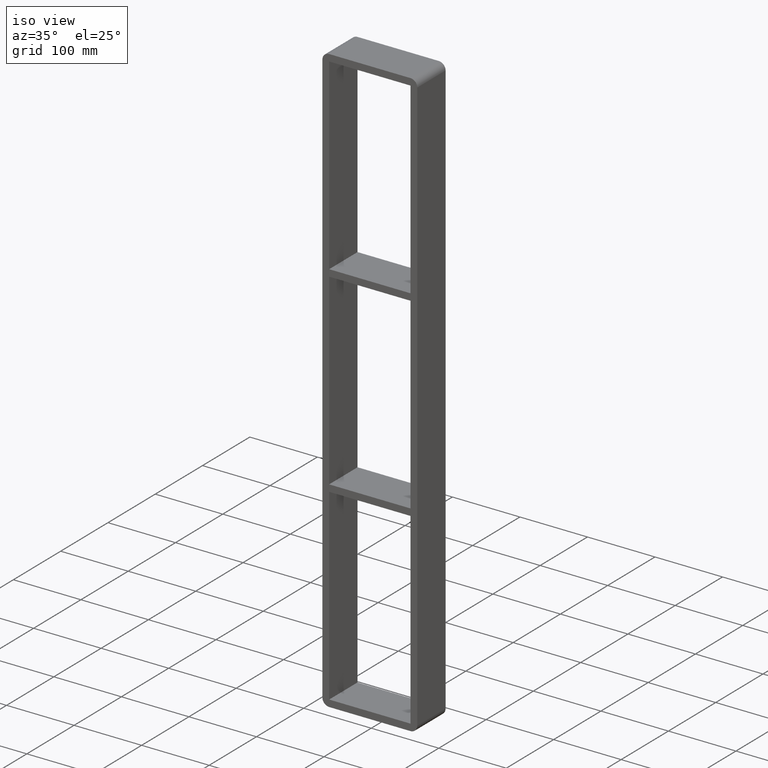
[diagram: clean part render]
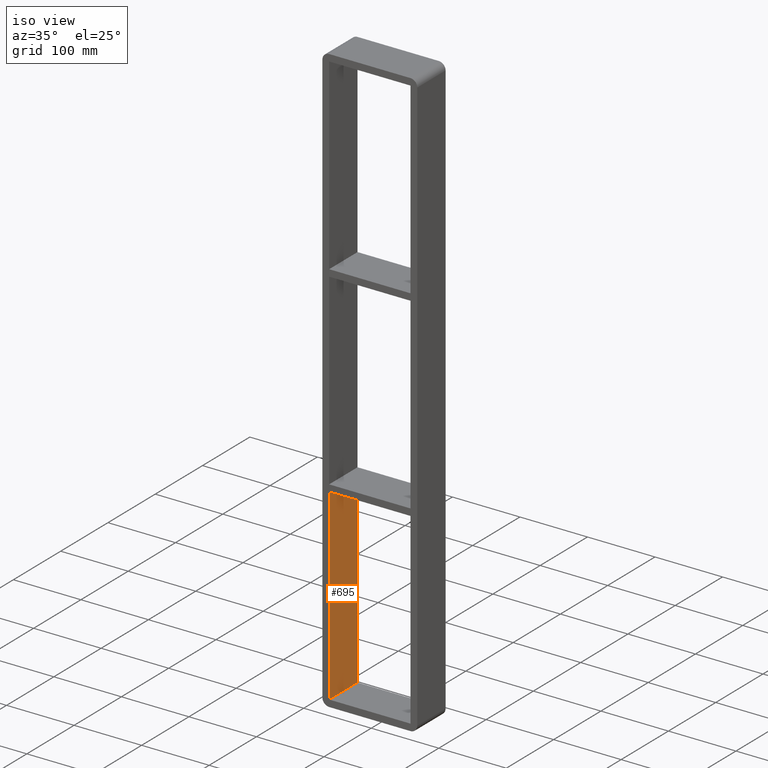
[diagram: same view with one face highlighted and labeled with its STEP entity id]
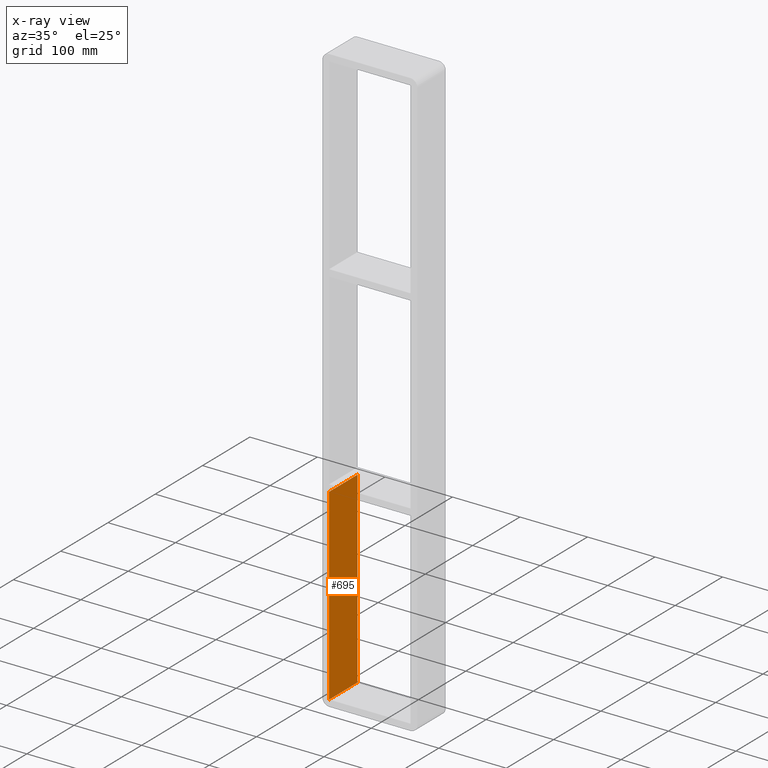
[diagram: x-ray of the same camera — body ghosted, the highlighted face saturated]
A machine part, iso view. The second image highlights one B-rep face of the part: STEP entity #695.
The next image is the same camera in x-ray: the body ghosted, the highlighted face saturated — about 0% of this face is hidden behind the body in this view.
In plain terms, the highlighted planar face has unit normal (-1, 0, 0).
Its self-contained STEP definition (entity closure, byte-faithful):
#248=CARTESIAN_POINT('',(-60.249999999999687,-3.0,-149.00000000000944));
#249=VERTEX_POINT('',#248);
#256=CARTESIAN_POINT('',(-60.249999999999687,57.0,-149.00000000000944));
#257=VERTEX_POINT('',#256);
#258=CARTESIAN_POINT('',(-60.25,57.000000000000007,-149.00000000000946));
#259=DIRECTION('',(0.0,-1.0,0.0));
#260=VECTOR('',#259,60.000000000000007);
#261=LINE('',#258,#260);
#262=EDGE_CURVE('',#257,#249,#261,.T.);
#491=CARTESIAN_POINT('',(-60.250000000000014,-3.0,-427.0));
#492=VERTEX_POINT('',#491);
#499=CARTESIAN_POINT('',(-60.25,-3.0,-427.0));
#500=DIRECTION('',(0.0,0.0,1.0));
#501=VECTOR('',#500,277.99999999999056);
#502=LINE('',#499,#501);
#503=EDGE_CURVE('',#492,#249,#502,.T.);
#672=CARTESIAN_POINT('',(-60.25,0.0,-427.0));
#673=DIRECTION('',(-1.0,0.0,0.0));
#674=DIRECTION('',(0.0,0.0,1.0));
#675=AXIS2_PLACEMENT_3D('',#672,#673,#674);
#676=PLANE('',#675);
#677=ORIENTED_EDGE('',*,*,#262,.T.);
#678=ORIENTED_EDGE('',*,*,#503,.F.);
#679=CARTESIAN_POINT('',(-60.250000000000014,57.0,-427.0));
#680=VERTEX_POINT('',#679);
#681=CARTESIAN_POINT('',(-60.25,-3.0,-427.0));
#682=DIRECTION('',(0.0,1.0,0.0));
#683=VECTOR('',#682,60.0);
#684=LINE('',#681,#683);
#685=EDGE_CURVE('',#492,#680,#684,.T.);
#686=ORIENTED_EDGE('',*,*,#685,.T.);
#687=CARTESIAN_POINT('',(-60.25,57.0,-149.00000000000944));
#688=DIRECTION('',(0.0,0.0,-1.0));
#689=VECTOR('',#688,277.99999999999056);
#690=LINE('',#687,#689);
#691=EDGE_CURVE('',#257,#680,#690,.T.);
#692=ORIENTED_EDGE('',*,*,#691,.F.);
#693=EDGE_LOOP('',(#677,#678,#686,#692));
#694=FACE_OUTER_BOUND('',#693,.T.);
#695=ADVANCED_FACE('',(#694),#676,.F.);